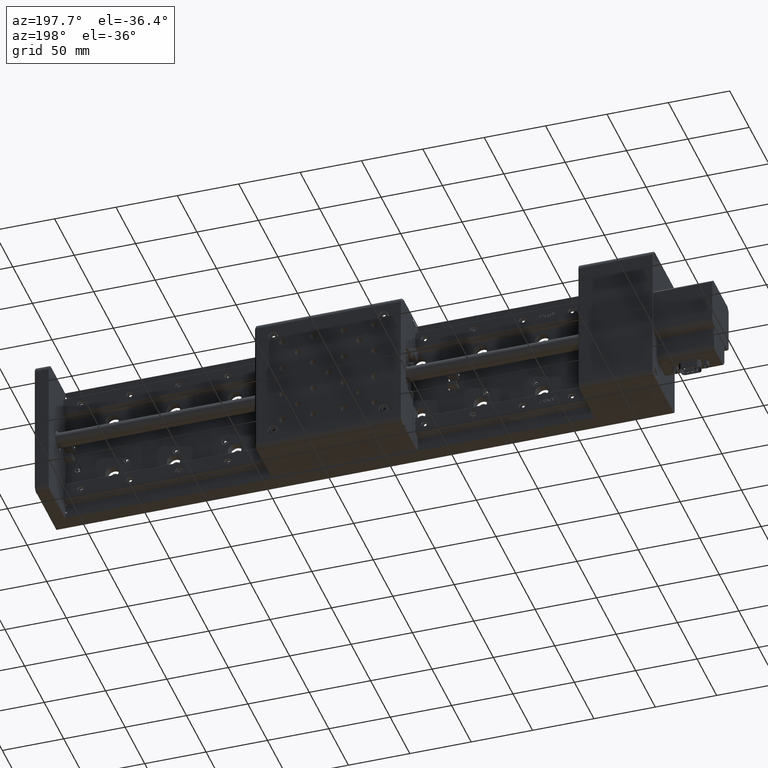
[diagram: clean part render]
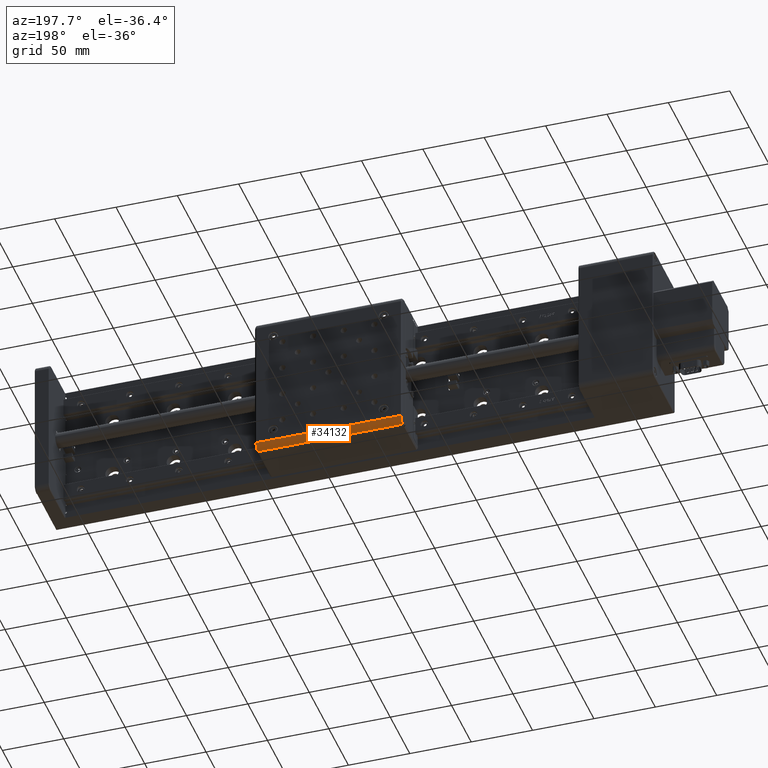
[diagram: same view with one face highlighted and labeled with its STEP entity id]
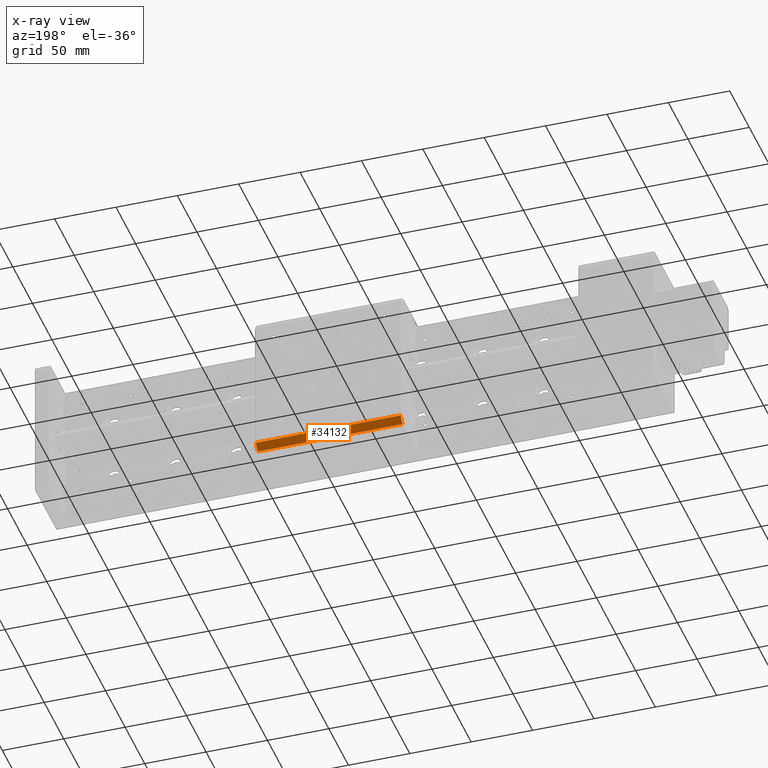
[diagram: x-ray of the same camera — body ghosted, the highlighted face saturated]
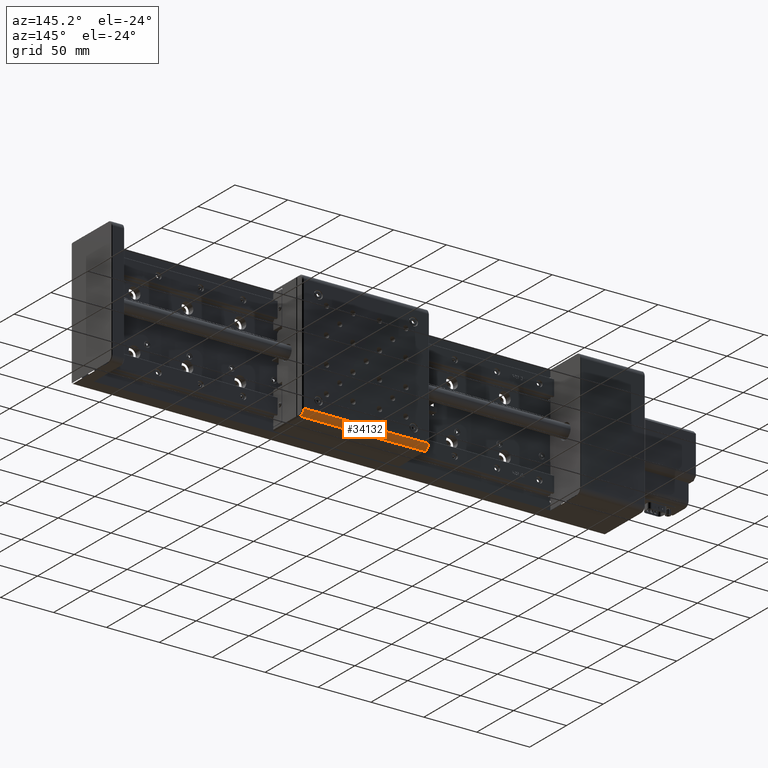
[diagram: same view with one face highlighted and labeled with its STEP entity id]
A machine part, auxiliary view. The second image highlights one B-rep face of the part: STEP entity #34132.
The next image is the same camera in x-ray: the body ghosted, the highlighted face saturated — about 0% of this face is hidden behind the body in this view.
A second angle (auxiliary view) of the same face is appended — the face is thin or edge-on in the first view.
In plain terms, the highlighted cylindrical surface (edge-blend (fillet) strip) has radius 5 mm, axis along (-1, -0, -0).
Its self-contained STEP definition (entity closure, byte-faithful):
#1731 = FACE_OUTER_BOUND ( 'NONE', #8534, .T. ) ;
#2425 = DIRECTION ( 'NONE',  ( -1.000000000000000000, -3.680305806060870400E-016, -1.043609643147646200E-014 ) ) ;
#4624 = CARTESIAN_POINT ( 'NONE',  ( -172.2943546395801200, 50.99999999999995000, 197.9914224104938400 ) ) ;
#6081 = DIRECTION ( 'NONE',  ( -1.000000000000000000, -3.680305806060870400E-016, -1.043609643147646200E-014 ) ) ;
#6269 = AXIS2_PLACEMENT_3D ( 'NONE', #32197, #35454, #11920 ) ;
#6485 = VERTEX_POINT ( 'NONE', #4624 ) ;
#7102 = DIRECTION ( 'NONE',  ( 0.0000000000000000000, -1.000000000000000000, 0.0000000000000000000 ) ) ;
#8534 = EDGE_LOOP ( 'NONE', ( #17569, #36280, #29049, #20709 ) ) ;
#8710 = VERTEX_POINT ( 'NONE', #35444 ) ;
#8940 = CARTESIAN_POINT ( 'NONE',  ( -54.29435463958014200, 55.99999999999999300, 202.9914224104950600 ) ) ;
#9067 = DIRECTION ( 'NONE',  ( 0.0000000000000000000, 1.000000000000000000, 0.0000000000000000000 ) ) ;
#11035 = EDGE_CURVE ( 'NONE', #6485, #8710, #36372, .T. ) ;
#11920 = DIRECTION ( 'NONE',  ( 0.0000000000000000000, 1.000000000000000000, 0.0000000000000000000 ) ) ;
#12155 = VERTEX_POINT ( 'NONE', #36462 ) ;
#12590 = CARTESIAN_POINT ( 'NONE',  ( -54.29435463958014200, 50.99999999999999300, 202.9914224104950600 ) ) ;
#13933 = VECTOR ( 'NONE', #2425, 1000.000000000000000 ) ;
#14679 = CIRCLE ( 'NONE', #30813, 4.999999999999997300 ) ;
#17569 = ORIENTED_EDGE ( 'NONE', *, *, #40994, .F. ) ;
#18967 = VERTEX_POINT ( 'NONE', #8940 ) ;
#19376 = CARTESIAN_POINT ( 'NONE',  ( -113.2943546395801500, 55.99999999999996400, 202.9914224104944400 ) ) ;
#20563 = EDGE_CURVE ( 'NONE', #18967, #12155, #14679, .T. ) ;
#20709 = ORIENTED_EDGE ( 'NONE', *, *, #11035, .T. ) ;
#21873 = VECTOR ( 'NONE', #29848, 1000.000000000000000 ) ;
#22858 = CYLINDRICAL_SURFACE ( 'NONE', #6269, 4.999999999999997300 ) ;
#22876 = LINE ( 'NONE', #19376, #13933 ) ;
#23313 = CARTESIAN_POINT ( 'NONE',  ( -53.29435463958009200, 50.99999999999999300, 197.9914224104950600 ) ) ;
#23444 = AXIS2_PLACEMENT_3D ( 'NONE', #40849, #24953, #7102 ) ;
#24953 = DIRECTION ( 'NONE',  ( 1.000000000000000000, 3.680305806060870400E-016, 1.043609643147646200E-014 ) ) ;
#29049 = ORIENTED_EDGE ( 'NONE', *, *, #38161, .F. ) ;
#29848 = DIRECTION ( 'NONE',  ( 1.000000000000000000, 3.680305806060870400E-016, 1.043609643147646200E-014 ) ) ;
#30813 = AXIS2_PLACEMENT_3D ( 'NONE', #12590, #6081, #9067 ) ;
#31428 = LINE ( 'NONE', #23313, #21873 ) ;
#32197 = CARTESIAN_POINT ( 'NONE',  ( -113.2943546395801500, 50.99999999999997200, 202.9914224104944400 ) ) ;
#34132 = ADVANCED_FACE ( 'NONE', ( #1731 ), #22858, .T. ) ;
#35444 = CARTESIAN_POINT ( 'NONE',  ( -172.2943546395801500, 55.99999999999994300, 202.9914224104938400 ) ) ;
#35454 = DIRECTION ( 'NONE',  ( -1.000000000000000000, -3.680305806060870400E-016, -1.043609643147646200E-014 ) ) ;
#36280 = ORIENTED_EDGE ( 'NONE', *, *, #20563, .T. ) ;
#36372 = CIRCLE ( 'NONE', #23444, 4.999999999999997300 ) ;
#36462 = CARTESIAN_POINT ( 'NONE',  ( -54.29435463958009200, 50.99999999999999300, 197.9914224104950600 ) ) ;
#38161 = EDGE_CURVE ( 'NONE', #6485, #12155, #31428, .T. ) ;
#40849 = CARTESIAN_POINT ( 'NONE',  ( -172.2943546395801500, 50.99999999999995000, 202.9914224104938400 ) ) ;
#40994 = EDGE_CURVE ( 'NONE', #18967, #8710, #22876, .T. ) ;